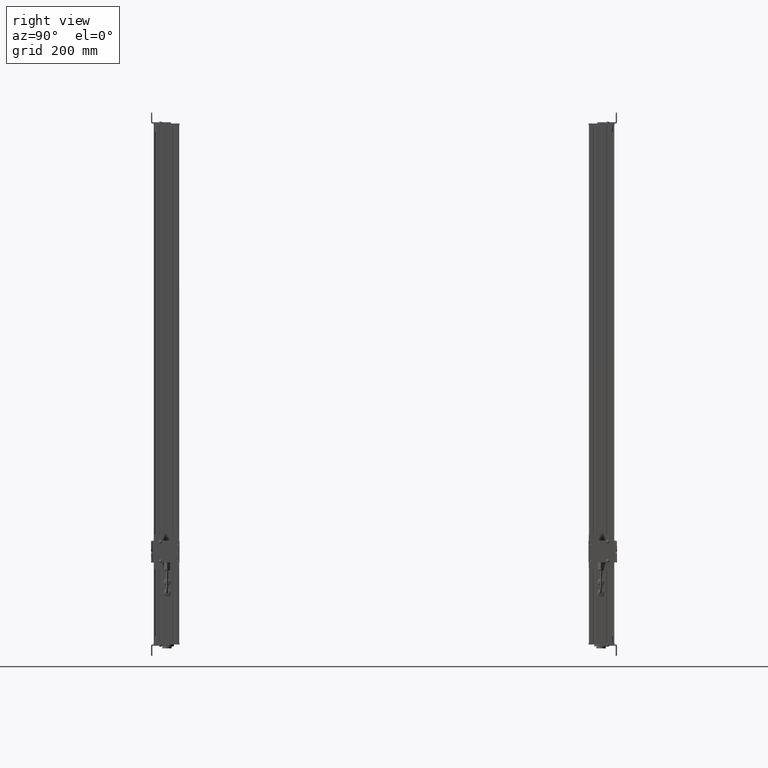
[diagram: clean part render]
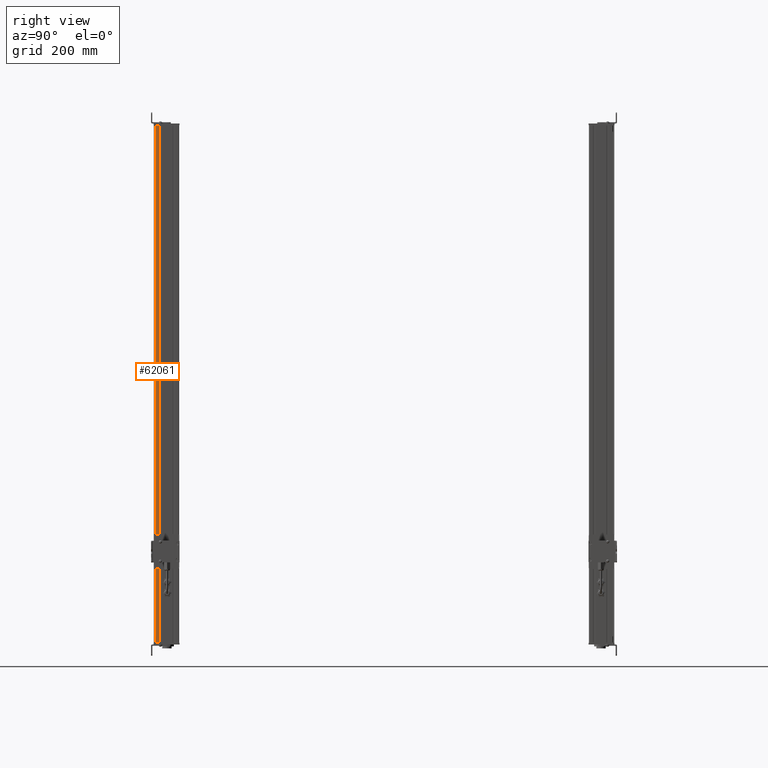
[diagram: same view with one face highlighted and labeled with its STEP entity id]
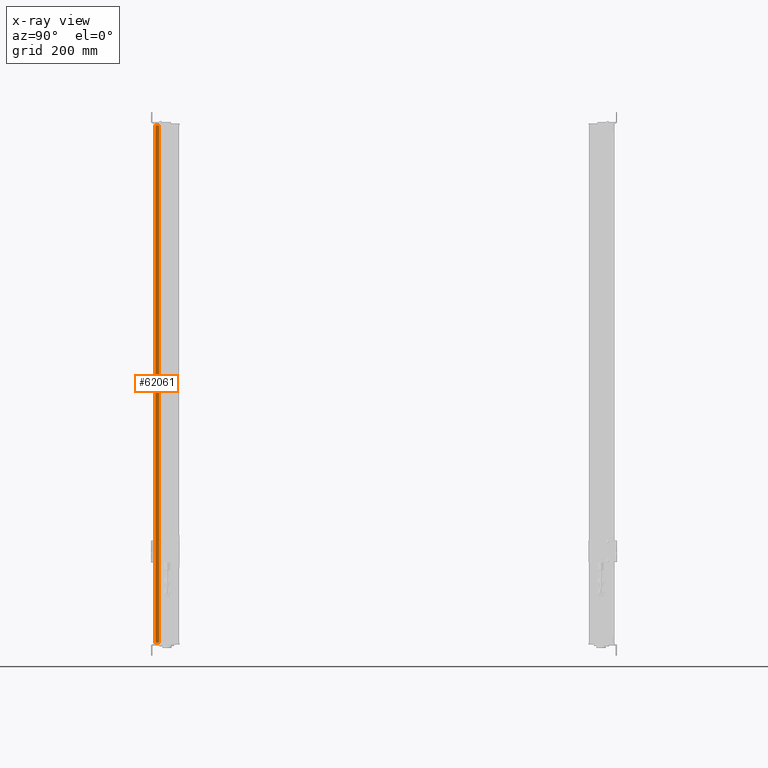
[diagram: x-ray of the same camera — body ghosted, the highlighted face saturated]
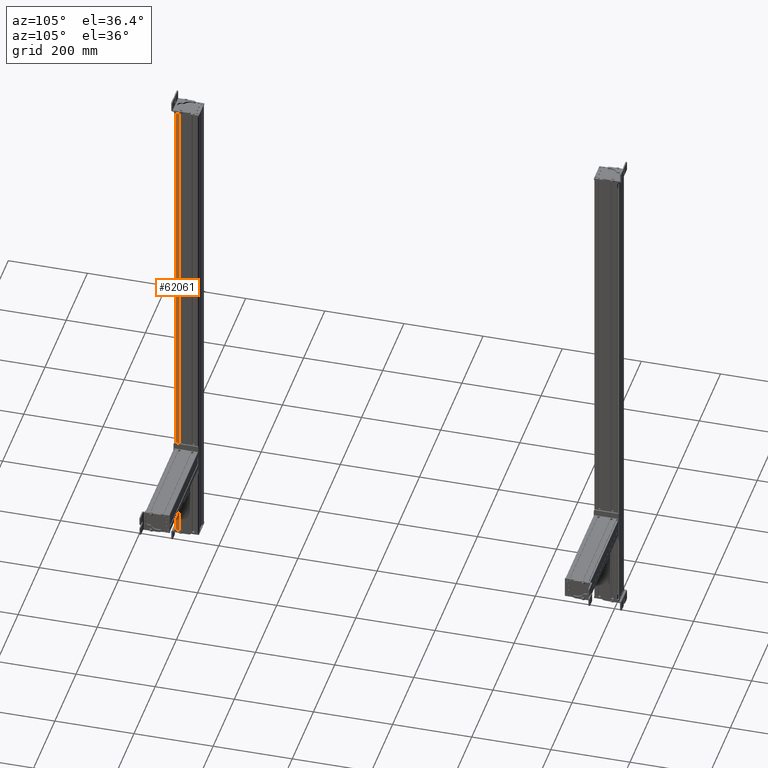
[diagram: same view with one face highlighted and labeled with its STEP entity id]
A machine part, right view. The second image highlights one B-rep face of the part: STEP entity #62061.
The next image is the same camera in x-ray: the body ghosted, the highlighted face saturated — about 4% of this face is hidden behind the body in this view.
A second angle (auxiliary view) of the same face is appended — the face is thin or edge-on in the first view.
In plain terms, the highlighted planar face has unit normal (1, 0, 0).
Its self-contained STEP definition (entity closure, byte-faithful):
#62009=CARTESIAN_POINT('Vertex',(666.195883661,124.112001771,0.)) ;
#62012=CARTESIAN_POINT('Line Origine',(666.195883661,124.112001771,631.)) ;
#62016=CARTESIAN_POINT('Vertex',(666.195883661,124.112001771,1262.)) ;
#62031=CARTESIAN_POINT('Axis2P3D Location',(666.195883662,171.710394004,0.)) ;
#62036=CARTESIAN_POINT('Line Origine',(666.195883662,128.589896023,0.)) ;
#62040=CARTESIAN_POINT('Vertex',(666.195883662,133.067790275,0.)) ;
#62043=CARTESIAN_POINT('Line Origine',(666.195883662,133.067790275,631.)) ;
#62047=CARTESIAN_POINT('Vertex',(666.195883662,133.067790275,1262.)) ;
#62050=CARTESIAN_POINT('Line Origine',(666.195883662,128.589896023,1262.)) ;
#62013=DIRECTION('Vector Direction',(0.,0.,1.)) ;
#62032=DIRECTION('Axis2P3D Direction',(1.,0.,0.)) ;
#62033=DIRECTION('Axis2P3D XDirection',(0.,1.,0.)) ;
#62037=DIRECTION('Vector Direction',(0.,1.,0.)) ;
#62044=DIRECTION('Vector Direction',(0.,0.,1.)) ;
#62051=DIRECTION('Vector Direction',(0.,1.,0.)) ;
#62034=AXIS2_PLACEMENT_3D('Plane Axis2P3D',#62031,#62032,#62033) ;
#62056=ORIENTED_EDGE('',*,*,#62018,.F.) ;
#62057=ORIENTED_EDGE('',*,*,#62042,.T.) ;
#62058=ORIENTED_EDGE('',*,*,#62049,.T.) ;
#62059=ORIENTED_EDGE('',*,*,#62054,.F.) ;
#62014=VECTOR('Line Direction',#62013,1.) ;
#62038=VECTOR('Line Direction',#62037,1.) ;
#62045=VECTOR('Line Direction',#62044,1.) ;
#62052=VECTOR('Line Direction',#62051,1.) ;
#62061=ADVANCED_FACE('Body.2',(#62060),#62035,.T.) ;
#62018=EDGE_CURVE('',#62010,#62017,#62015,.T.) ;
#62042=EDGE_CURVE('',#62010,#62041,#62039,.T.) ;
#62049=EDGE_CURVE('',#62041,#62048,#62046,.T.) ;
#62054=EDGE_CURVE('',#62017,#62048,#62053,.T.) ;
#62055=EDGE_LOOP('',(#62056,#62057,#62058,#62059)) ;
#62060=FACE_OUTER_BOUND('',#62055,.T.) ;
#62015=LINE('Line',#62012,#62014) ;
#62039=LINE('Line',#62036,#62038) ;
#62046=LINE('Line',#62043,#62045) ;
#62053=LINE('Line',#62050,#62052) ;
#62035=PLANE('Plane',#62034) ;
#62010=VERTEX_POINT('',#62009) ;
#62017=VERTEX_POINT('',#62016) ;
#62041=VERTEX_POINT('',#62040) ;
#62048=VERTEX_POINT('',#62047) ;